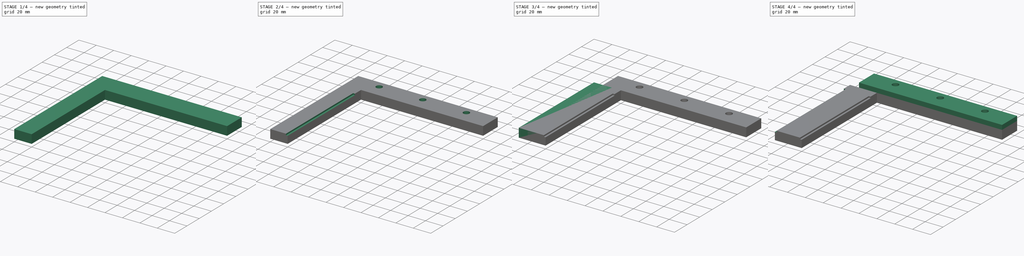
[diagram: build sequence overview — one tinted view per stage of 4, left to right]
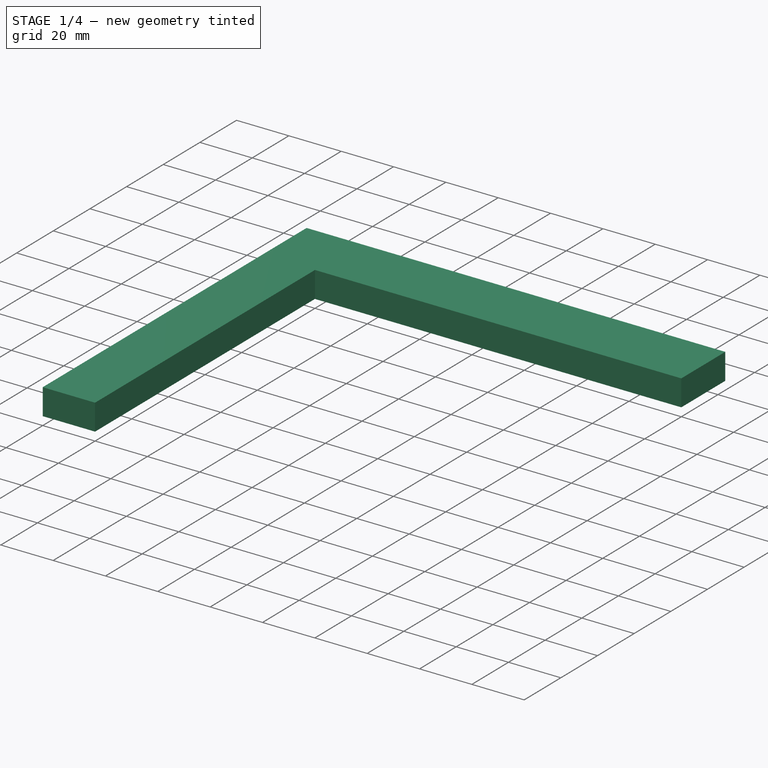
[diagram: stage 1 of 4 — iso view after this stage's code; geometry added in this stage tinted green]
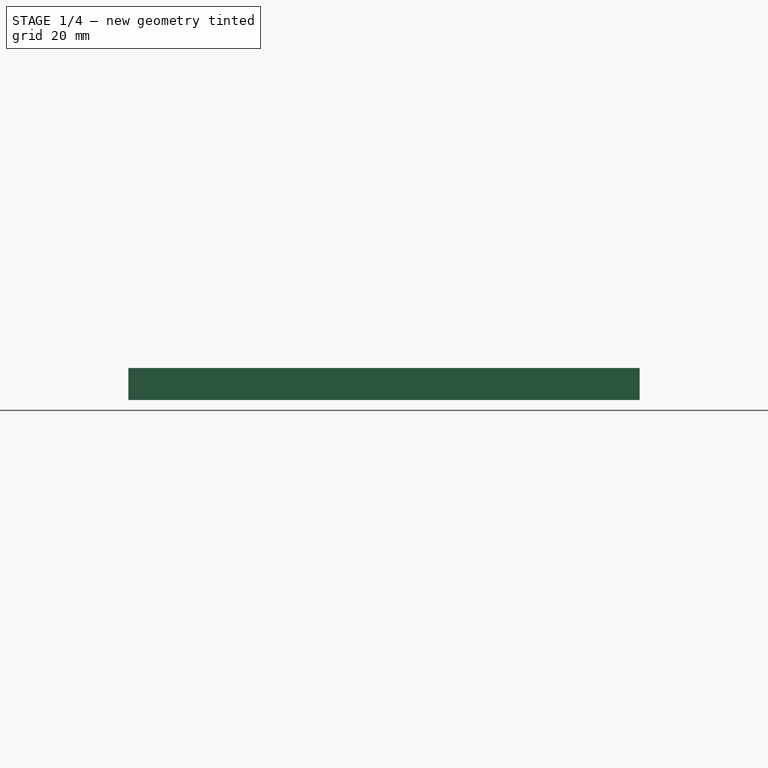
[diagram: stage 1 of 4 — front view after this stage's code; geometry added in this stage tinted green]
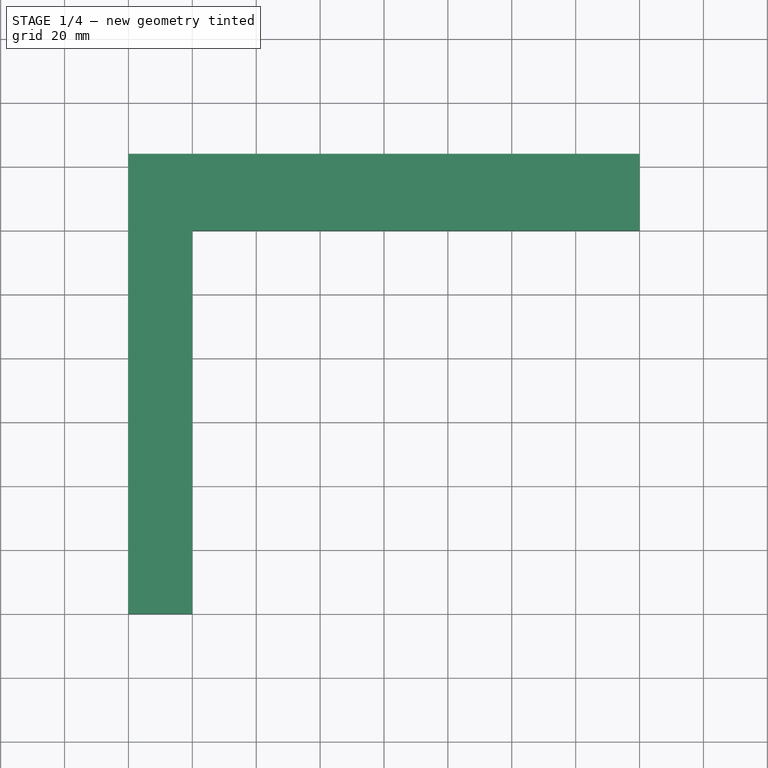
[diagram: stage 1 of 4 — top view after this stage's code; geometry added in this stage tinted green]
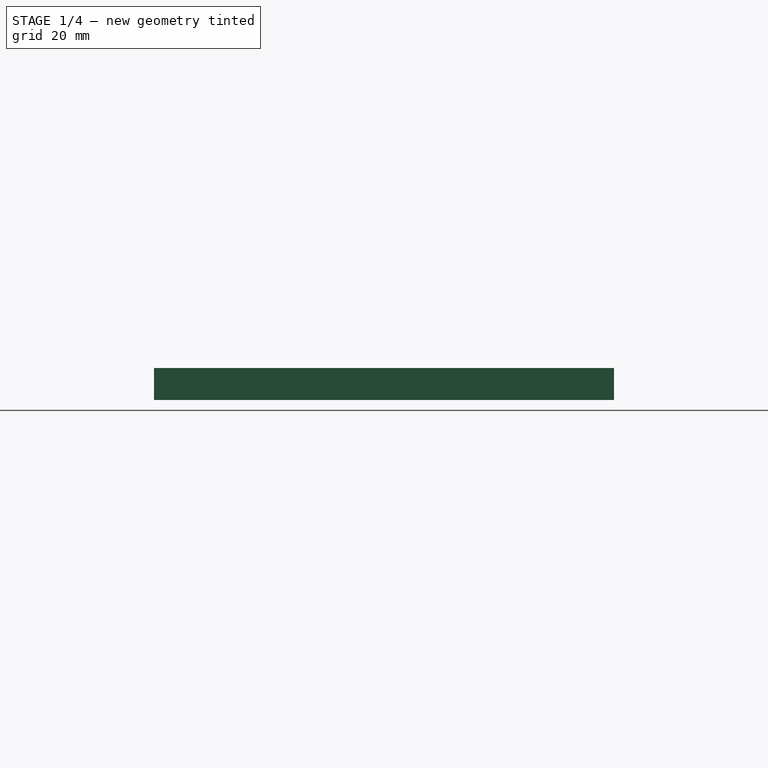
[diagram: stage 1 of 4 — right view after this stage's code; geometry added in this stage tinted green]
FCSTD DOCUMENT  (FreeCAD 1.1R44795 (Git))
Label: stencil-printer
License: All rights reserved
LicenseURL: http://en.wikipedia.org/wiki/All_rights_reserved
objects: Sketcher::SketchObject×11, PartDesign::Pocket×7, App::Point×6, PartDesign::Pad×4, PartDesign::Body×3, App::Part×3, Spreadsheet::Sheet×1
note: 58 computed .brp shape members not serialized (recipe doc carries the construction recipe); baked Part::Feature solids carry a one-line shape summary decoded from their .brp

FEATURE [Sketcher::SketchObject] Sketch001
  ArcFitTolerance = 1e-06
  AttachmentSupport = -> [YZ_Plane002]
  ExternalTypes = [0]
  FullyConstrained = true
  MakeInternals = false
  MapMode = 5
  Placement = pos=(0,0,0) rot=(0.57735,0.57735,0.57735;2.0944rad)
  _ExternalGeoVersion = 0
  sketch-geometry (4):
    g0: LineSegment StartX=0 StartY=5 StartZ=0 EndX=0 EndY=-5 EndZ=0
    g1: LineSegment StartX=0 StartY=-5 StartZ=0 EndX=24 EndY=-5 EndZ=0
    g2: LineSegment StartX=24 StartY=-5 StartZ=0 EndX=24 EndY=5 EndZ=0
    g3: LineSegment StartX=24 StartY=5 StartZ=0 EndX=0 EndY=5 EndZ=0
  constraints (12):
    c: Coincident(g0,g1)
    c: Coincident(g1,g2)
    c: Coincident(g2,g3)
    c: Coincident(g3,g0)
    c: Vertical(g0)
    c: Vertical(g2)
    c: Horizontal(g1)
    c: Horizontal(g3)
    c: PointOnObject(g0,g-2)
    c: DistanceX(g3,g3) = 24
    c: DistanceY(g-1,g0) = 5
    c: DistanceY(g0,g-1) = 5
FEATURE [PartDesign::Pad] Pad001
  Direction = (1,0,0)
  Length = 160
  Length2 = 10
  Placement = pos=(0,0,0) rot=(1,1,1;2.0944rad)
  Profile = -> Sketch001
  ReferenceAxis = -> Sketch001 [N_Axis]
  SideType = 0
  Suppressed = false
  Type = 0
  Type2 = 0
  expr: Length = <<Params>>.PCBWidth + 40
FEATURE [Sketcher::SketchObject] Sketch002
  ArcFitTolerance = 1e-06
  AttachmentSupport = -> [Pad001]
  ExternalTypes = [0]
  FullyConstrained = true
  MakeInternals = false
  MapMode = 5
  Placement = pos=(0,0,0) rot=(0.57735,0.57735,-0.57735;2.0944rad)
  _ExternalGeoVersion = 0
  sketch-geometry (4):
    g0: LineSegment StartX=-5 StartY=0 StartZ=0 EndX=-5 EndY=20 EndZ=0
    g1: LineSegment StartX=-5 StartY=20 StartZ=0 EndX=5 EndY=20 EndZ=0
    g2: LineSegment StartX=5 StartY=20 StartZ=0 EndX=5 EndY=0 EndZ=0
    g3: LineSegment StartX=5 StartY=0 StartZ=0 EndX=-5 EndY=0 EndZ=0
  constraints (12):
    c: PointOnObject(g0,g-1)
    c: Vertical(g0)
    c: Horizontal(g1)
    c: Coincident(g2,g1)
    c: PointOnObject(g2,g-1)
    c: Vertical(g2)
    c: Coincident(g3,g2)
    c: Coincident(g3,g0)
    c: DistanceX(g0,g-1) = 5
    c: DistanceX(g-1,g2) = 5
    c: DistanceY(g2,g2) = 20
    c: Coincident(g0,g1)
FEATURE [PartDesign::Pad] Pad002
  BaseFeature = -> Pad001
  Direction = (0,-1,0)
  Length = 120
  Length2 = 10
  Placement = pos=(0,0,0) rot=(1,1,1;2.0944rad)
  Profile = -> Sketch002
  ReferenceAxis = -> Sketch002 [N_Axis]
  SideType = 0
  Suppressed = false
  Type = 0
  Type2 = 0
  expr: Length = <<Params>>.PCBLength
FEATURE [Sketcher::SketchObject] Sketch004
  ArcFitTolerance = 1e-06
  AttachmentSupport = -> [Pad002]
  ExternalTypes = [0]
  FullyConstrained = true
  MakeInternals = false
  MapMode = 5
  Placement = pos=(6e-16,-1.7e-15,-5) rot=(0.707107,0.707107,0;3.14159rad)
  _ExternalGeoVersion = 0
  expr: Constraints[0] = <<Params>>.MagnetDiameter + 0.5
  expr: Constraints[1] = <<Params>>.MagnetDiameter + 0.5
  expr: Constraints[2] = <<Params>>.PCBLength - 20
  expr: Constraints[6] = <<Params>>.MagnetDiameter + 0.5
  expr: Constraints[7] = <<Params>>.PCBWidth + 40 - 10
  sketch-geometry (3):
    g0: Circle CenterX=-100 CenterY=10 CenterZ=0 NormalX=0 NormalY=0 NormalZ=1 AngleXU=0 Radius=7.75
    g1: Circle CenterX=-20 CenterY=10 CenterZ=0 NormalX=0 NormalY=0 NormalZ=1 AngleXU=0 Radius=7.75
    g2: Circle CenterX=12 CenterY=150 CenterZ=0 NormalX=0 NormalY=0 NormalZ=1 AngleXU=0 Radius=7.75
  constraints (9):
    c: Diameter(g0) = 15.5
    c: Diameter(g1) = 15.5
    c: DistanceX(g0,g-1) = 100
    c: DistanceX(g1,g-1) = 20
    c: DistanceY(g-1,g0) = 10
    c: DistanceY(g-1,g1) = 10
    c: Diameter(g2) = 15.5
    c: DistanceY(g-1,g2) = 150
    c: DistanceX(g-1,g2) = 12
FEATURE [PartDesign::Pocket] Pocket001
  BaseFeature = -> Pad002
  Direction = (0,0,1)
  Length = 2.1
  Length2 = 5
  Placement = pos=(0,0,0) rot=(1,1,1;2.0944rad)
  Profile = -> Sketch004
  ReferenceAxis = -> Sketch004 [N_Axis]
  SideType = 0
  Suppressed = false
  Type = 0
  Type2 = 0
  expr: Length = <<Params>>.MagnetHeight + 0.1
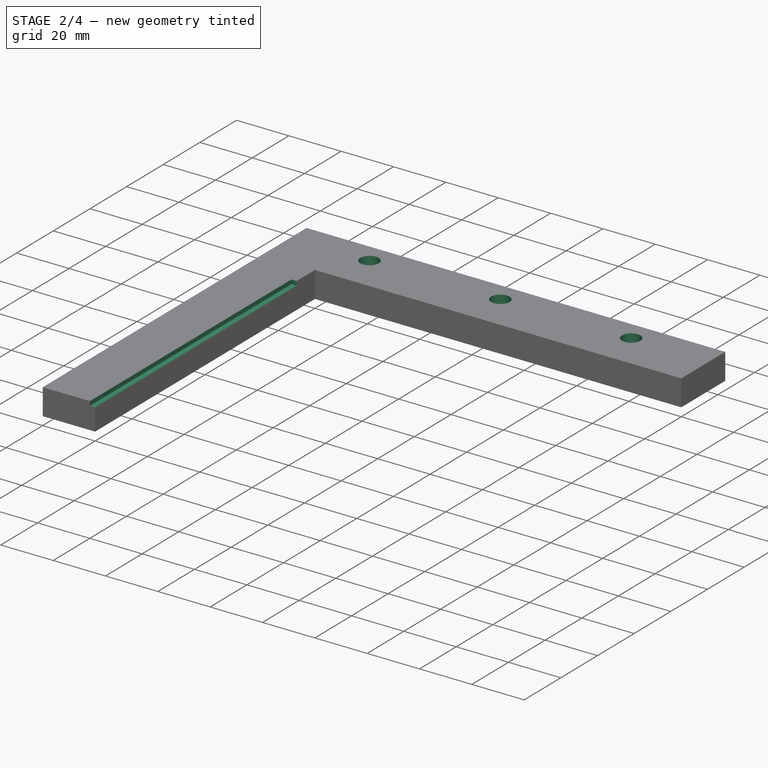
[diagram: stage 2 of 4 — iso view after this stage's code; geometry added in this stage tinted green]
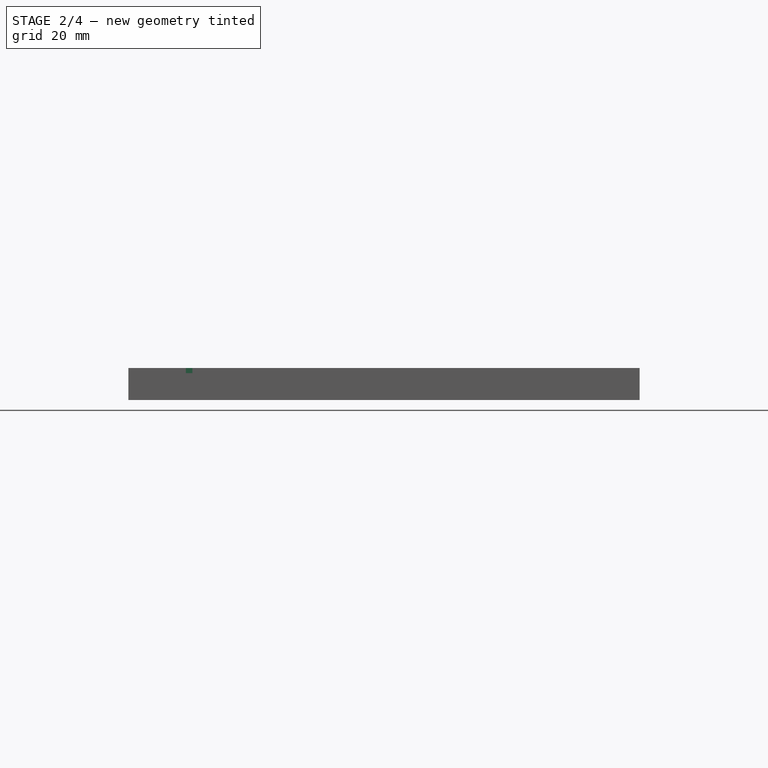
[diagram: stage 2 of 4 — front view after this stage's code; geometry added in this stage tinted green]
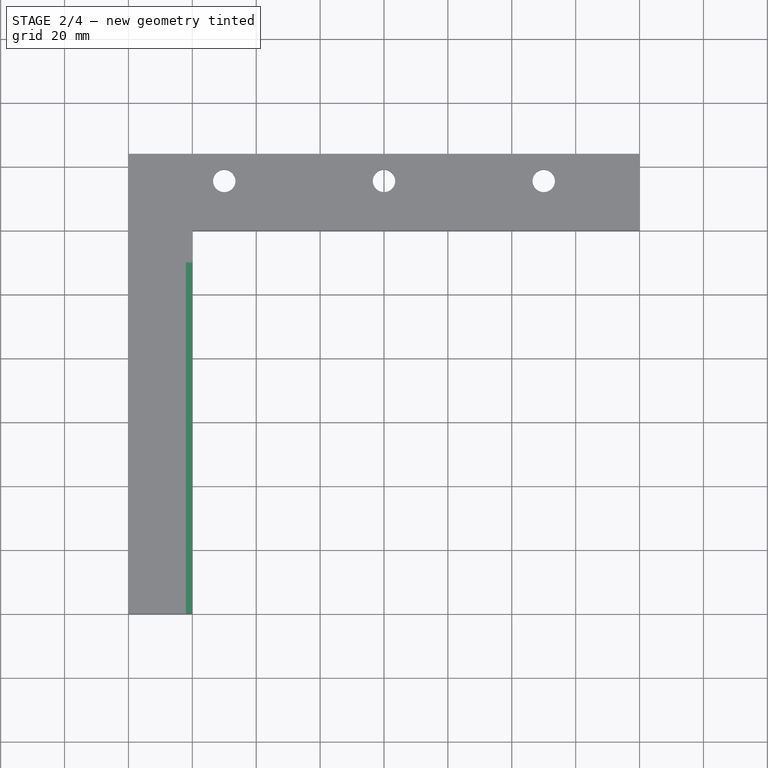
[diagram: stage 2 of 4 — top view after this stage's code; geometry added in this stage tinted green]
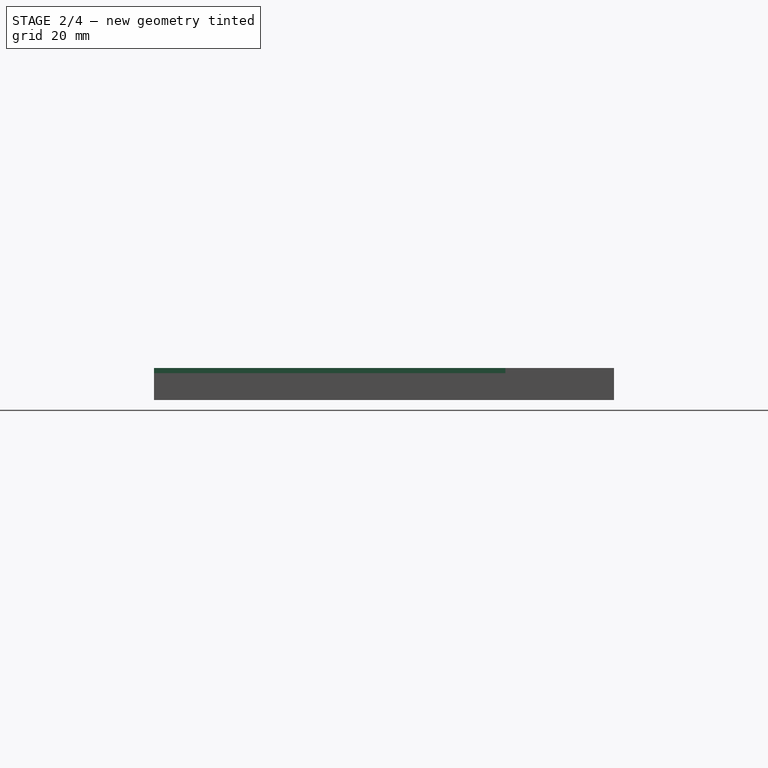
[diagram: stage 2 of 4 — right view after this stage's code; geometry added in this stage tinted green]
FEATURE [Sketcher::SketchObject] Sketch005
  ArcFitTolerance = 1e-06
  AttachmentSupport = -> [Pocket001]
  ExternalTypes = [0]
  FullyConstrained = true
  MakeInternals = false
  MapMode = 5
  Placement = pos=(2.2e-15,-2.2e-15,-5) rot=(0.707107,0.707107,0;3.14159rad)
  _ExternalGeoVersion = 0
  expr: Constraints[38] = (<<Params>>.PCBWidth + 40) / 2
  expr: Constraints[62] = <<Params>>.PCBWidth + 40 - 30
  sketch-geometry (21):
    g0: LineSegment StartX=20.75 StartY=33.0311 StartZ=0 EndX=15.5 EndY=36.0622 EndZ=0
    g1: LineSegment StartX=15.5 StartY=36.0622 StartZ=0 EndX=10.25 EndY=33.0311 EndZ=0
    g2: LineSegment StartX=10.25 StartY=33.0311 StartZ=0 EndX=10.25 EndY=26.9689 EndZ=0
    g3: LineSegment StartX=10.25 StartY=26.9689 StartZ=0 EndX=15.5 EndY=23.9378 EndZ=0
    g4: LineSegment StartX=15.5 StartY=23.9378 StartZ=0 EndX=20.75 EndY=26.9689 EndZ=0
    g5: LineSegment StartX=20.75 StartY=26.9689 StartZ=0 EndX=20.75 EndY=33.0311 EndZ=0
    g6: Circle [constr] CenterX=15.5 CenterY=30 CenterZ=0 NormalX=0 NormalY=0 NormalZ=1 AngleXU=0 Radius=6.06218
    g7: LineSegment StartX=20.75 StartY=83.0311 StartZ=0 EndX=15.5 EndY=86.0622 EndZ=0
    g8: LineSegment StartX=15.5 StartY=86.0622 StartZ=0 EndX=10.25 EndY=83.0311 EndZ=0
    g9: LineSegment StartX=10.25 StartY=83.0311 StartZ=0 EndX=10.25 EndY=76.9689 EndZ=0
    g10: LineSegment StartX=10.25 StartY=76.9689 StartZ=0 EndX=15.5 EndY=73.9378 EndZ=0
    g11: LineSegment StartX=15.5 StartY=73.9378 StartZ=0 EndX=20.75 EndY=76.9689 EndZ=0
    g12: LineSegment StartX=20.75 StartY=76.9689 StartZ=0 EndX=20.75 EndY=83.0311 EndZ=0
    g13: Circle [constr] CenterX=15.5 CenterY=80 CenterZ=0 NormalX=0 NormalY=0 NormalZ=1 AngleXU=0 Radius=6.06218
    g14: LineSegment StartX=15.5 StartY=136.062 StartZ=0 EndX=10.25 EndY=133.031 EndZ=0
    g15: LineSegment StartX=10.25 StartY=133.031 StartZ=0 EndX=10.25 EndY=126.969 EndZ=0
    g16: LineSegment StartX=10.25 StartY=126.969 StartZ=0 EndX=15.5 EndY=123.938 EndZ=0
    g17: LineSegment StartX=15.5 StartY=123.938 StartZ=0 EndX=20.75 EndY=126.969 EndZ=0
    g18: LineSegment StartX=20.75 StartY=126.969 StartZ=0 EndX=20.75 EndY=133.031 EndZ=0
    g19: LineSegment StartX=20.75 StartY=133.031 StartZ=0 EndX=15.5 EndY=136.062 EndZ=0
    g20: Circle [constr] CenterX=15.5 CenterY=130 CenterZ=0 NormalX=0 NormalY=0 NormalZ=1 AngleXU=0 Radius=6.06218
  constraints (51):
    c: Coincident(g0,g1)
    c: Coincident(g1,g2)
    c: Coincident(g2,g3)
    c: Coincident(g3,g4)
    c: Coincident(g4,g5)
    c: Coincident(g5,g0)
    c: Equal(g0, g1-g5) x5
    c: PointOnObject(g0,g6)
    c: PointOnObject(g1,g6)
    c: PointOnObject(g2,g6)
    c: PointOnObject(g3,g6)
    c: PointOnObject(g4,g6)
    c: PointOnObject(g5,g6)
    c: DistanceY(g-1,g6) = 30
    c: DistanceX(g-1,g0) = 15.5
    c: DistanceX(g-1,g3) = 15.5
    c: DistanceX(g1,g0) = 10.5
    c: Coincident(g7,g8)
    c: Coincident(g8,g9)
    c: Coincident(g9,g10)
    c: Coincident(g10,g11)
    c: Coincident(g11,g12)
    c: Coincident(g12,g7)
    c: Equal(g7, g8-g12) x5
    c: PointOnObject(g7,g13)
    c: PointOnObject(g8,g13)
    c: PointOnObject(g9,g13)
    c: PointOnObject(g10,g13)
    c: PointOnObject(g11,g13)
    c: PointOnObject(g12,g13)
    c: DistanceY(g-1,g13) = 80
    c: DistanceX(g-1,g7) = 15.5
    c: DistanceX(g-1,g10) = 15.5
    c: DistanceX(g8,g7) = 10.5
    c: Coincident(g14,g15)
    c: Coincident(g15,g16)
    c: Coincident(g16,g17)
    c: Coincident(g17,g18)
    c: Coincident(g18,g19)
    c: Coincident(g19,g14)
    c: Equal(g14, g15-g19) x5
    c: PointOnObject(g14,g20)
    c: PointOnObject(g15,g20)
    c: PointOnObject(g16,g20)
    c: PointOnObject(g17,g20)
    c: PointOnObject(g18,g20)
    c: PointOnObject(g19,g20)
    c: DistanceX(g-1,g16) = 15.5
    c: DistanceX(g-1,g14) = 15.5
    c: DistanceX(g14,g18) = 10.5
    c: DistanceY(g-1,g20) = 130
FEATURE [PartDesign::Pocket] Pocket002
  BaseFeature = -> Pocket001
  Direction = (0,0,1)
  Length = 5.2
  Length2 = 5
  Placement = pos=(0,0,0) rot=(1,1,1;2.0944rad)
  Profile = -> Sketch005
  ReferenceAxis = -> Sketch005 [N_Axis]
  SideType = 0
  Suppressed = false
  Type = 0
  Type2 = 0
FEATURE [Sketcher::SketchObject] Sketch006
  ArcFitTolerance = 1e-06
  AttachmentSupport = -> [Pocket002]
  ExternalTypes = [0]
  FullyConstrained = true
  MakeInternals = false
  MapMode = 5
  Placement = pos=(5.6e-15,-3.3e-15,-5) rot=(0.707107,0.707107,0;3.14159rad)
  _ExternalGeoVersion = 0
  expr: Constraints[4] = (<<Params>>.PCBWidth + 40) / 2
  expr: Constraints[5] = <<Params>>.PCBWidth + 40 - 30
  sketch-geometry (3):
    g0: Circle CenterX=15.5 CenterY=30 CenterZ=0 NormalX=0 NormalY=0 NormalZ=1 AngleXU=0 Radius=3.5
    g1: Circle CenterX=15.5 CenterY=80 CenterZ=0 NormalX=0 NormalY=0 NormalZ=1 AngleXU=0 Radius=3.5
    g2: Circle CenterX=15.5 CenterY=130 CenterZ=0 NormalX=0 NormalY=0 NormalZ=1 AngleXU=0 Radius=3.5
  constraints (9):
    c: Diameter(g2) = 7
    c: Diameter(g1) = 7
    c: Diameter(g0) = 7
    c: DistanceY(g-1,g0) = 30
    c: DistanceY(g-1,g1) = 80
    c: DistanceY(g-1,g2) = 130
    c: DistanceX(g-1,g0) = 15.5
    c: DistanceX(g-1,g1) = 15.5
    c: DistanceX(g-1,g2) = 15.5
FEATURE [PartDesign::Pocket] Pocket003
  BaseFeature = -> Pocket002
  Direction = (-1.1e-15,0,1)
  Length = 10
  Length2 = 5
  Placement = pos=(0,0,0) rot=(1,1,1;2.0944rad)
  Profile = -> Sketch006
  ReferenceAxis = -> Sketch006 [N_Axis]
  SideType = 0
  Suppressed = false
  Type = 0
  Type2 = 0
FEATURE [PartDesign::Body] Body
  AllowCompound = false
  Group = -> [Sketch,Pad,Sketch003,Pocket,Sketch009,Pocket005]
  Origin = -> Origin001
  Tip = -> Pocket005
FEATURE [App::Part] Part001  label="Bar"
  Group = -> [Body]
  Origin = -> Origin003
FEATURE [Sketcher::SketchObject] Sketch010
  ArcFitTolerance = 1e-06
  AttachmentSupport = -> [Pocket003]
  ExternalTypes = [0]
  FullyConstrained = true
  MakeInternals = false
  MapMode = 5
  Placement = pos=(0,-120,1.599e-13) rot=(0.57735,0.57735,-0.57735;2.0944rad)
  _ExternalGeoVersion = 0
  expr: Constraints[11] = <<Params>>.PCBHeight
  sketch-geometry (4):
    g0: LineSegment StartX=-5 StartY=20 StartZ=0 EndX=-5 EndY=18 EndZ=0
    g1: LineSegment StartX=-5 StartY=18 StartZ=0 EndX=-3.4 EndY=18 EndZ=0
    g2: LineSegment StartX=-3.4 StartY=18 StartZ=0 EndX=-3.4 EndY=20 EndZ=0
    g3: LineSegment StartX=-3.4 StartY=20 StartZ=0 EndX=-5 EndY=20 EndZ=0
  constraints (12):
    c: Coincident(g0,g1)
    c: Coincident(g1,g2)
    c: Coincident(g2,g3)
    c: Coincident(g3,g0)
    c: Vertical(g0)
    c: Vertical(g2)
    c: Horizontal(g1)
    c: Horizontal(g3)
    c: DistanceY(g-1,g2) = 20
    c: DistanceY(g2,g2) = 2
    c: DistanceX(g0,g-1) = 5
    c: DistanceX(g1,g1) = 1.6
FEATURE [PartDesign::Pocket] Pocket006
  BaseFeature = -> Pocket003
  Direction = (0,1,-1.3e-15)
  Length = 110
  Length2 = 5
  Placement = pos=(0,0,0) rot=(1,1,1;2.0944rad)
  Profile = -> Sketch010
  ReferenceAxis = -> Sketch010 [N_Axis]
  SideType = 0
  Suppressed = false
  Type = 0
  Type2 = 0
  expr: Length = <<Params>>.PCBLength - 10
FEATURE [PartDesign::Body] Body001
  AllowCompound = false
  Group = -> [Sketch001,Pad001,Sketch002,Pad002,Sketch004,Pocket001,Sketch005,Pocket002,Sketch006,Pocket003,Sketch010,Pocket006]
  Origin = -> Origin002
  Placement = pos=(-150,0,0) rot=(0,0,1;0rad)
  Tip = -> Pocket006
  expr: .Placement.Base.x = -(<<Params>>.PCBWidth + 40 - 10)
FEATURE [App::Part] Part  label="Angle"
  Group = -> [Body001]
  Origin = -> Origin
FEATURE [App::Point] Origin006  label="Origin"
  Role = Origin
FEATURE [App::Point] Origin007  label="Origin"
  Role = Origin
FEATURE [App::Point] Origin008  label="Origin"
  Role = Origin
FEATURE [App::Point] Origin009  label="Origin"
  Role = Origin
FEATURE [App::Point] Origin010  label="Origin"
  Role = Origin
FEATURE [App::Point] Origin011  label="Origin"
  Role = Origin
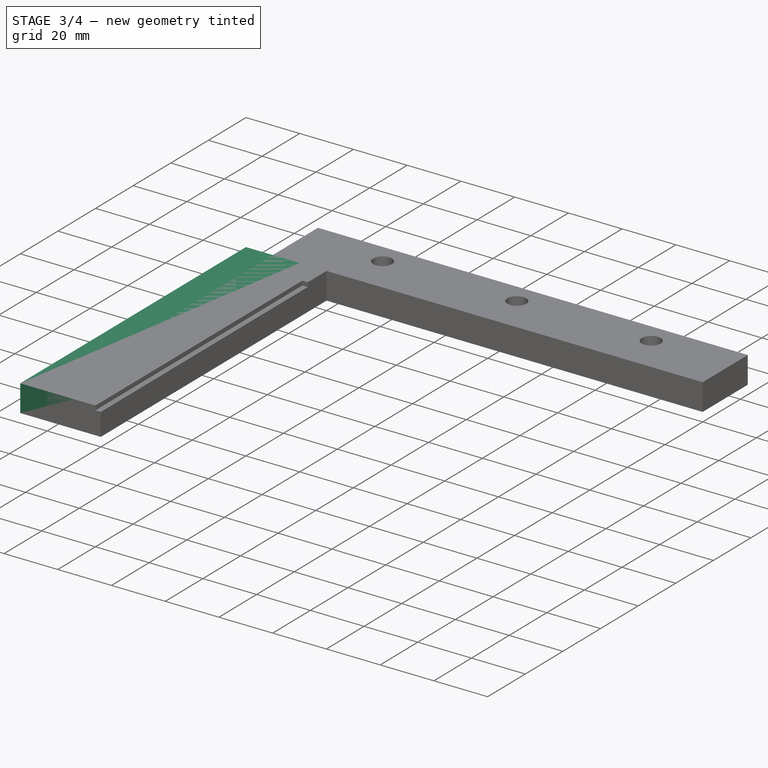
[diagram: stage 3 of 4 — iso view after this stage's code; geometry added in this stage tinted green]
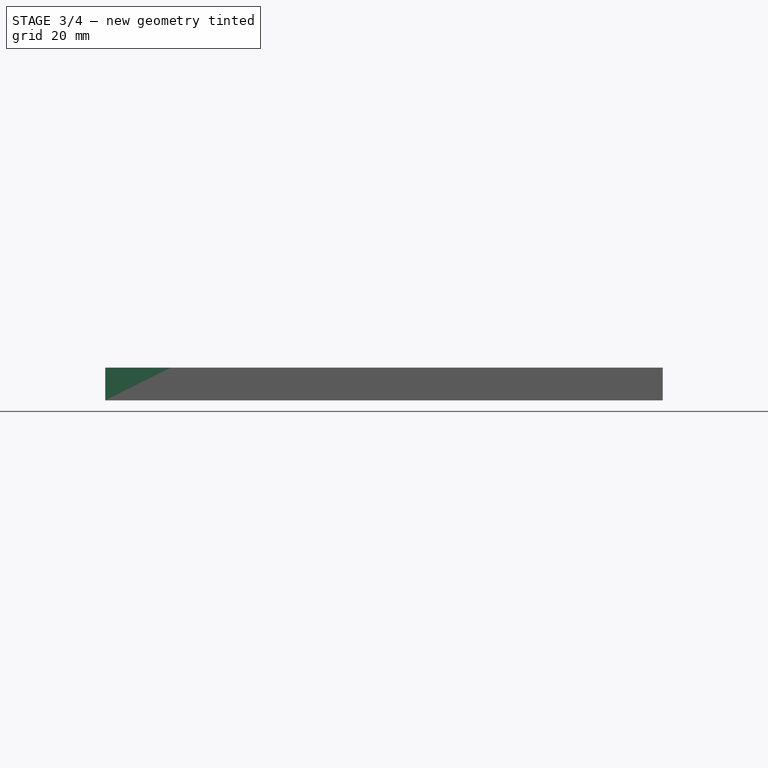
[diagram: stage 3 of 4 — front view after this stage's code; geometry added in this stage tinted green]
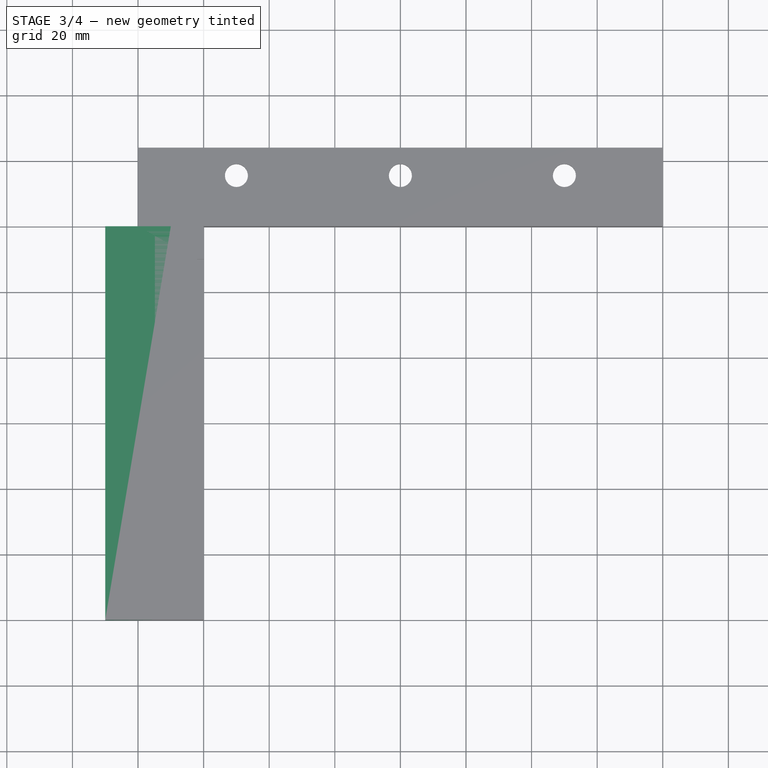
[diagram: stage 3 of 4 — top view after this stage's code; geometry added in this stage tinted green]
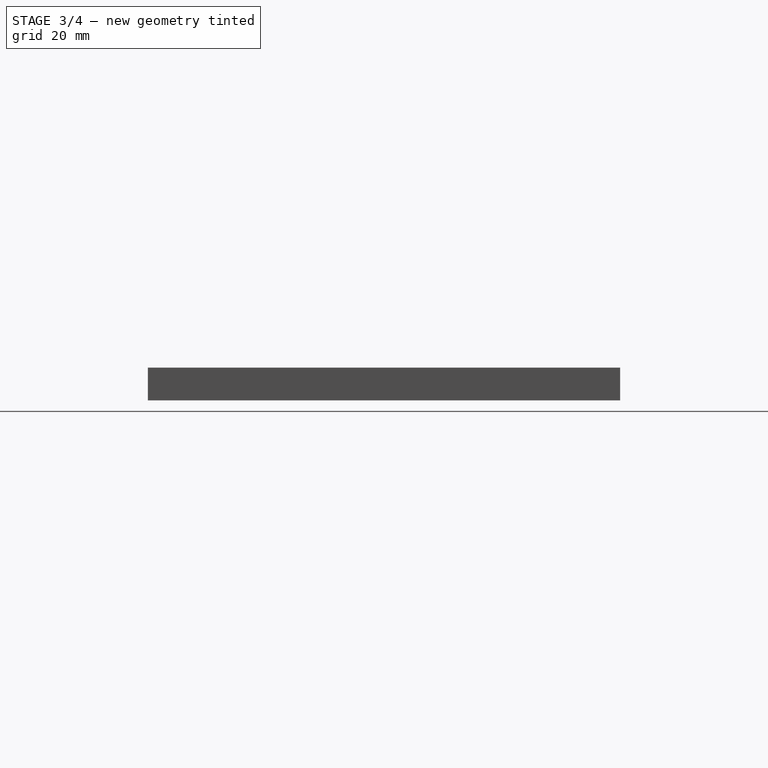
[diagram: stage 3 of 4 — right view after this stage's code; geometry added in this stage tinted green]
FEATURE [Sketcher::SketchObject] Sketch
  ArcFitTolerance = 1e-06
  AttachmentSupport = -> [XZ_Plane001]
  ExternalTypes = [0]
  FullyConstrained = true
  MakeInternals = false
  MapMode = 5
  Placement = pos=(0,0,0) rot=(1,0,0;1.5708rad)
  _ExternalGeoVersion = 0
  sketch-geometry (4):
    g0: LineSegment StartX=-10 StartY=5 StartZ=0 EndX=-10 EndY=-5 EndZ=0
    g1: LineSegment StartX=-10 StartY=-5 StartZ=0 EndX=10 EndY=-5 EndZ=0
    g2: LineSegment StartX=10 StartY=-5 StartZ=0 EndX=10 EndY=5 EndZ=0
    g3: LineSegment StartX=-10 StartY=5 StartZ=0 EndX=10 EndY=5 EndZ=0
  constraints (12):
    c: Coincident(g0,g1)
    c: Coincident(g1,g2)
    c: Vertical(g0)
    c: Vertical(g2)
    c: Horizontal(g1)
    c: Coincident(g3,g2)
    c: Horizontal(g3)
    c: DistanceY(g1,g-1) = 5
    c: DistanceY(g-1,g2) = 5
    c: DistanceX(g0,g-1) = 10
    c: DistanceX(g-1,g1) = 10
    c: Coincident(g0,g3)
FEATURE [PartDesign::Pad] Pad
  Direction = (0,-1,2e-16)
  Length = 120
  Length2 = 10
  Placement = pos=(0,0,0) rot=(1,0,0;1.5708rad)
  Profile = -> Sketch
  ReferenceAxis = -> Sketch [N_Axis]
  SideType = 0
  Suppressed = false
  Type = 0
  Type2 = 0
  expr: Length = <<Params>>.PCBLength
FEATURE [Sketcher::SketchObject] Sketch003
  ArcFitTolerance = 1e-06
  AttachmentSupport = -> [Pad]
  ExternalTypes = [0]
  FullyConstrained = true
  MakeInternals = false
  MapMode = 5
  Placement = pos=(0,-1.1e-15,-5) rot=(1,0,0;3.14159rad)
  _ExternalGeoVersion = 0
  expr: Constraints[2] = <<Params>>.MagnetDiameter + 0.5
  expr: Constraints[3] = <<Params>>.MagnetDiameter + 0.5
  expr: Constraints[5] = <<Params>>.PCBLength - 20
  sketch-geometry (2):
    g0: Circle CenterX=0 CenterY=20 CenterZ=0 NormalX=0 NormalY=0 NormalZ=1 AngleXU=0 Radius=7.75
    g1: Circle CenterX=0 CenterY=100 CenterZ=0 NormalX=0 NormalY=0 NormalZ=1 AngleXU=0 Radius=7.75
  constraints (6):
    c: PointOnObject(g0,g-2)
    c: PointOnObject(g1,g-2)
    c: Diameter(g1) = 15.5
    c: Diameter(g0) = 15.5
    c: DistanceY(g-1,g0) = 20
    c: DistanceY(g-1,g1) = 100
FEATURE [PartDesign::Pocket] Pocket
  BaseFeature = -> Pad
  Direction = (0,0,1)
  Length = 2.1
  Length2 = 5
  Placement = pos=(0,0,0) rot=(1,0,0;1.5708rad)
  Profile = -> Sketch003
  ReferenceAxis = -> Sketch003 [N_Axis]
  SideType = 0
  Suppressed = false
  Type = 0
  Type2 = 0
  expr: Length = <<Params>>.MagnetHeight + 0.1
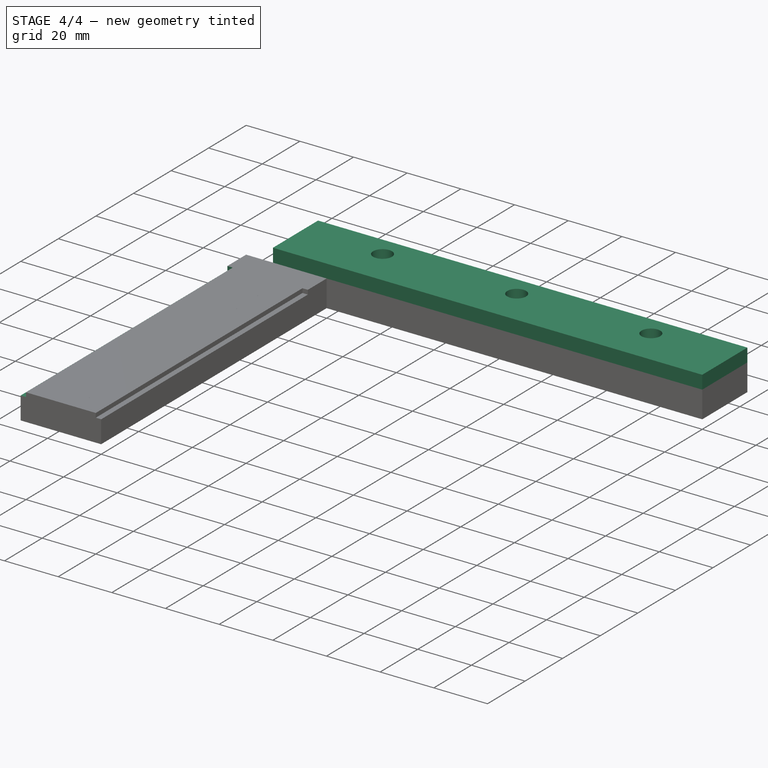
[diagram: stage 4 of 4 — iso view after this stage's code; geometry added in this stage tinted green]
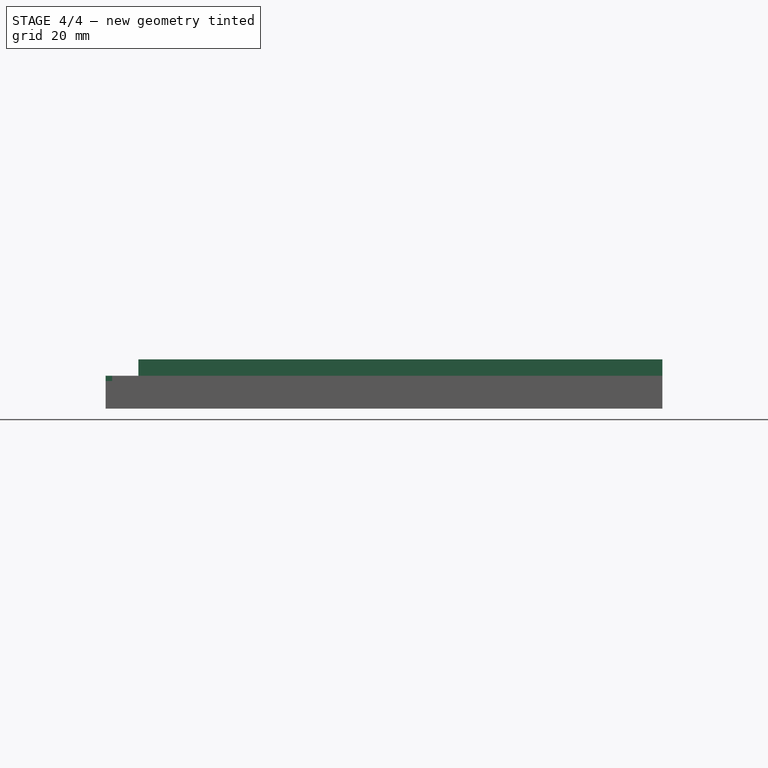
[diagram: stage 4 of 4 — front view after this stage's code; geometry added in this stage tinted green]
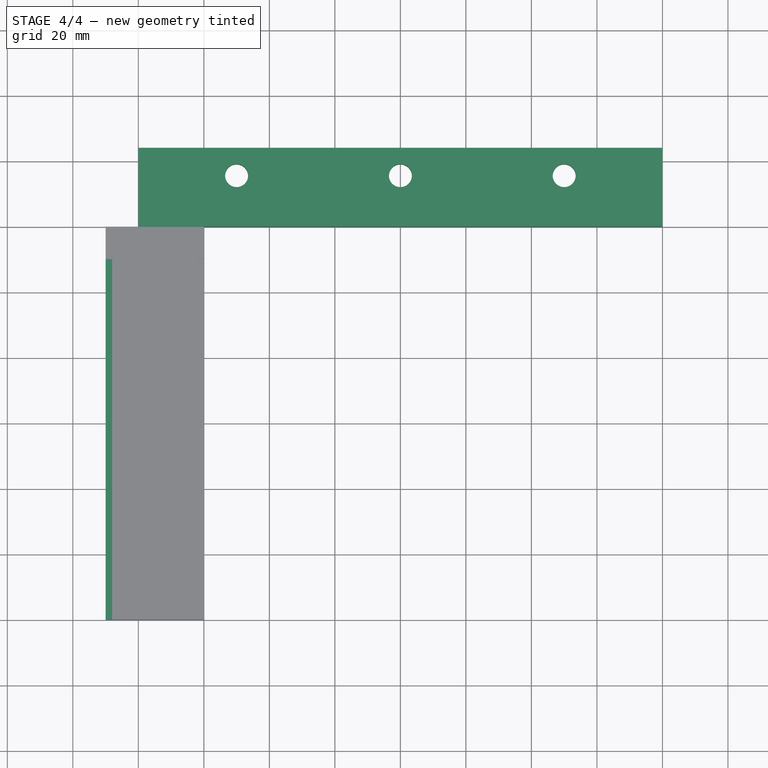
[diagram: stage 4 of 4 — top view after this stage's code; geometry added in this stage tinted green]
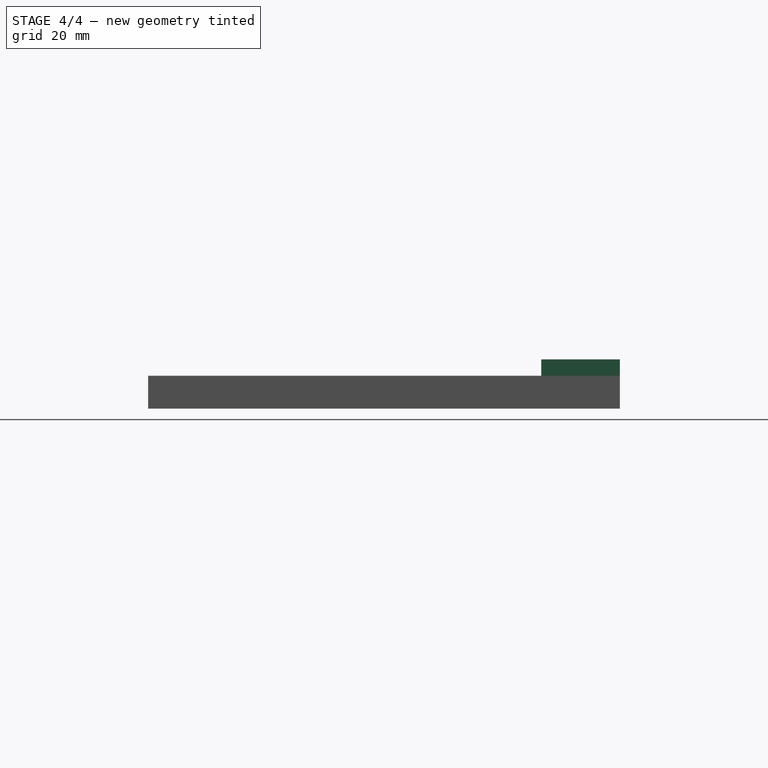
[diagram: stage 4 of 4 — right view after this stage's code; geometry added in this stage tinted green]
FEATURE [Sketcher::SketchObject] Sketch007
  ArcFitTolerance = 1e-06
  AttachmentSupport = -> [YZ_Plane005]
  ExternalTypes = [0]
  FullyConstrained = true
  MakeInternals = false
  MapMode = 5
  Placement = pos=(0,0,0) rot=(0.57735,0.57735,0.57735;2.0944rad)
  _ExternalGeoVersion = 0
  sketch-geometry (4):
    g0: LineSegment StartX=0 StartY=5 StartZ=0 EndX=24 EndY=5 EndZ=0
    g1: LineSegment StartX=24 StartY=5 StartZ=0 EndX=24 EndY=10 EndZ=0
    g2: LineSegment StartX=24 StartY=10 StartZ=0 EndX=0 EndY=10 EndZ=0
    g3: LineSegment StartX=0 StartY=10 StartZ=0 EndX=0 EndY=5 EndZ=0
  constraints (12):
    c: Coincident(g0,g1)
    c: Coincident(g1,g2)
    c: Coincident(g2,g3)
    c: Coincident(g3,g0)
    c: Horizontal(g0)
    c: Horizontal(g2)
    c: Vertical(g1)
    c: Vertical(g3)
    c: PointOnObject(g0,g-2)
    c: DistanceY(g-1,g0) = 5
    c: DistanceY(g3,g3) = 5
    c: DistanceX(g2,g2) = 24
FEATURE [PartDesign::Pad] Pad003
  Direction = (1,0,0)
  Length = 160
  Length2 = 10
  Placement = pos=(0,0,0) rot=(1,1,1;2.0944rad)
  Profile = -> Sketch007
  ReferenceAxis = -> Sketch007 [N_Axis]
  SideType = 0
  Suppressed = false
  Type = 0
  Type2 = 0
  expr: Length = <<Params>>.PCBWidth + 40
FEATURE [Sketcher::SketchObject] Sketch008
  ArcFitTolerance = 1e-06
  AttachmentSupport = -> [Pad003]
  ExternalTypes = [0]
  FullyConstrained = true
  MakeInternals = false
  MapMode = 5
  Placement = pos=(-1.1e-15,3.3e-15,10) rot=(0,0,-1;1.5708rad)
  _ExternalGeoVersion = 0
  expr: Constraints[4] = (<<Params>>.PCBWidth + 40) / 2
  expr: Constraints[5] = <<Params>>.PCBWidth + 40 - 30
  sketch-geometry (3):
    g0: Circle CenterX=-15.5 CenterY=30 CenterZ=0 NormalX=0 NormalY=0 NormalZ=1 AngleXU=0 Radius=3.5
    g1: Circle CenterX=-15.5 CenterY=80 CenterZ=0 NormalX=0 NormalY=0 NormalZ=1 AngleXU=0 Radius=3.5
    g2: Circle CenterX=-15.5 CenterY=130 CenterZ=0 NormalX=0 NormalY=0 NormalZ=1 AngleXU=0 Radius=3.5
  constraints (9):
    c: Diameter(g2) = 7
    c: Diameter(g1) = 7
    c: Diameter(g0) = 7
    c: DistanceY(g-1,g0) = 30
    c: DistanceY(g-1,g1) = 80
    c: DistanceY(g-1,g2) = 130
    c: DistanceX(g0,g-1) = 15.5
    c: DistanceX(g1,g-1) = 15.5
    c: DistanceX(g2,g-1) = 15.5
FEATURE [PartDesign::Pocket] Pocket004
  BaseFeature = -> Pad003
  Direction = (0,0,-1)
  Length = 5
  Length2 = 5
  Placement = pos=(0,0,0) rot=(1,1,1;2.0944rad)
  Profile = -> Sketch008
  ReferenceAxis = -> Sketch008 [N_Axis]
  SideType = 0
  Suppressed = false
  Type = 0
  Type2 = 0
FEATURE [PartDesign::Body] Body002
  AllowCompound = false
  Group = -> [Sketch007,Pad003,Sketch008,Pocket004]
  Origin = -> Origin005
  Placement = pos=(-150,0,0) rot=(0,0,1;0rad)
  Tip = -> Pocket004
  expr: .Placement.Base.x = -(<<Params>>.PCBWidth + 40 - 10)
FEATURE [App::Part] Part002  label="Clamp"
  Group = -> [Body002]
  Origin = -> Origin004
FEATURE [Spreadsheet::Sheet] Spreadsheet  label="Params"
  cells = A2='PCB Height; B2(PCBHeight)=1.6; A3='PCB Length; B3(PCBLength)=120; A4='PCB Width; B4(PCBWidth)=120; A5='Magnet Diameter; B5(MagnetDiameter)=15; A6='Magnet Height; B6(MagnetHeight)=2
FEATURE [Sketcher::SketchObject] Sketch009
  ArcFitTolerance = 1e-06
  AttachmentSupport = -> [Pocket]
  ExternalTypes = [0]
  FullyConstrained = true
  MakeInternals = false
  MapMode = 5
  Placement = pos=(0,-120,0) rot=(1,0,0;1.5708rad)
  _ExternalGeoVersion = 0
  expr: Constraints[11] = <<Params>>.PCBHeight
  sketch-geometry (4):
    g0: LineSegment StartX=-10 StartY=5 StartZ=0 EndX=-10 EndY=3.4 EndZ=0
    g1: LineSegment StartX=-10 StartY=3.4 StartZ=0 EndX=-8 EndY=3.4 EndZ=0
    g2: LineSegment StartX=-8 StartY=3.4 StartZ=0 EndX=-8 EndY=5 EndZ=0
    g3: LineSegment StartX=-8 StartY=5 StartZ=0 EndX=-10 EndY=5 EndZ=0
  constraints (12):
    c: Coincident(g0,g1)
    c: Coincident(g1,g2)
    c: Coincident(g2,g3)
    c: Coincident(g3,g0)
    c: Vertical(g0)
    c: Vertical(g2)
    c: Horizontal(g1)
    c: Horizontal(g3)
    c: DistanceX(g0,g-1) = 10
    c: DistanceX(g1,g1) = 2
    c: DistanceY(g-1,g2) = 5
    c: DistanceY(g2,g2) = 1.6
FEATURE [PartDesign::Pocket] Pocket005
  BaseFeature = -> Pocket
  Direction = (0,1,-2e-16)
  Length = 110
  Length2 = 5
  Placement = pos=(0,0,0) rot=(1,0,0;1.5708rad)
  Profile = -> Sketch009
  ReferenceAxis = -> Sketch009 [N_Axis]
  SideType = 0
  Suppressed = false
  Type = 0
  Type2 = 0
  expr: Length = <<Params>>.PCBLength - 10
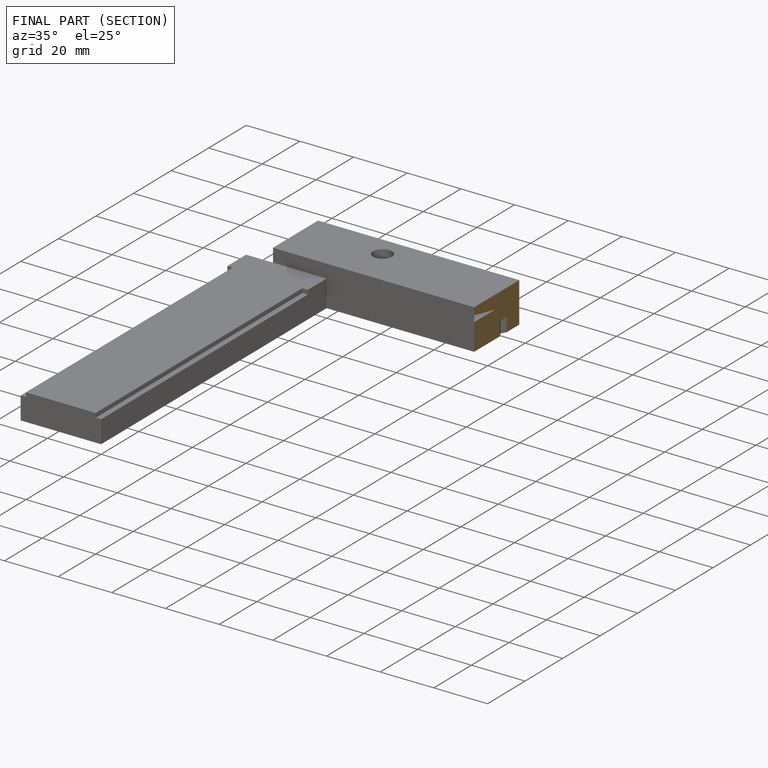
[diagram: finished part — half-section view (interior)]
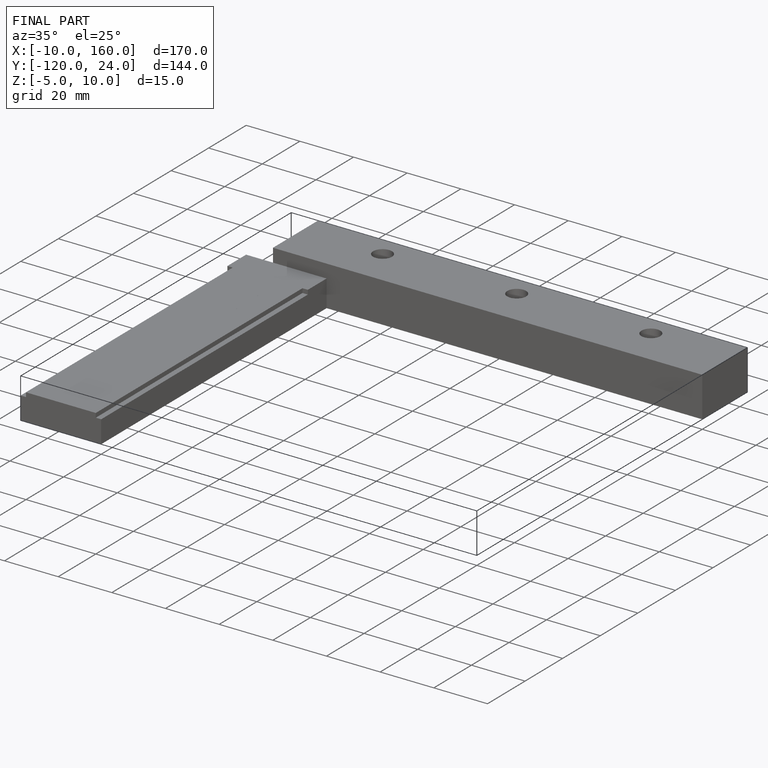
[diagram: finished part — iso view with bounding-box wireframe]
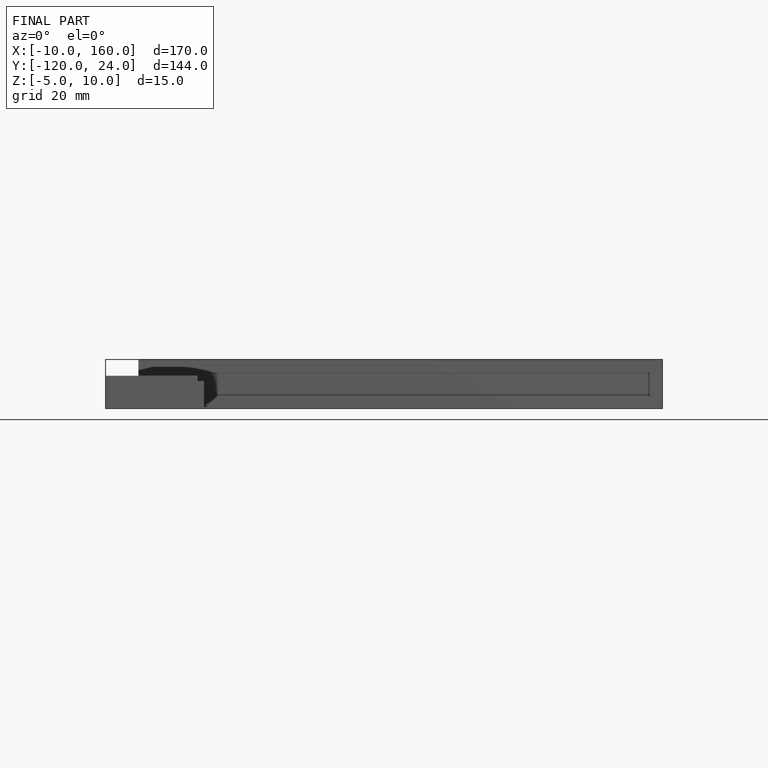
[diagram: finished part — front view with bounding-box wireframe]
